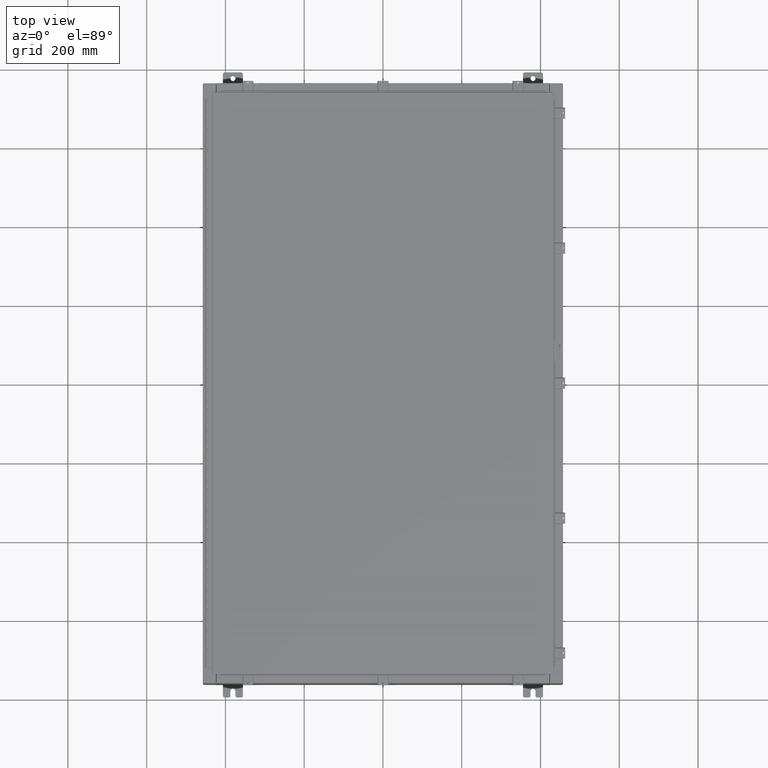
[diagram: clean part render]
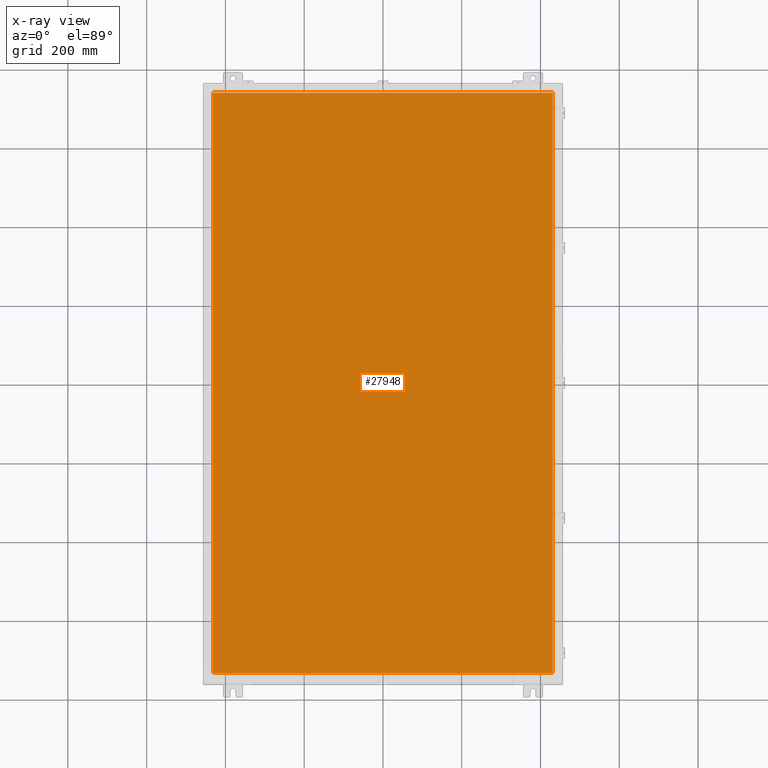
[diagram: x-ray — body ghosted, one internal face saturated and labeled with its STEP entity id]
A machine part, top view, then the same camera in x-ray: the body is ghosted and one INTERNAL B-rep face — a face not visible from any outside direction — is saturated and labeled: STEP entity #27948.
In plain terms, the highlighted planar face has unit normal (0, 0, -1).
Its self-contained STEP definition (entity closure, byte-faithful):
#8156 = LINE ( 'NONE', #57761, #57946 ) ;
#9603 = VERTEX_POINT ( 'NONE', #23980 ) ;
#12129 = CARTESIAN_POINT ( 'NONE',  ( -16.99029999999999400, 29.00630000000000000, -0.07470000000000000300 ) ) ;
#12171 = ORIENTED_EDGE ( 'NONE', *, *, #26365, .F. ) ;
#12830 = ORIENTED_EDGE ( 'NONE', *, *, #22200, .F. ) ;
#13421 = CARTESIAN_POINT ( 'NONE',  ( 16.99030000000000500, 29.00630000000000000, -0.07470000000000000300 ) ) ;
#13618 = EDGE_CURVE ( 'NONE', #56895, #26045, #57183, .T. ) ;
#15244 = ORIENTED_EDGE ( 'NONE', *, *, #13618, .F. ) ;
#17520 = VECTOR ( 'NONE', #27392, 39.37007874015748100 ) ;
#17899 = CARTESIAN_POINT ( 'NONE',  ( -16.99029999999999400, 29.00630000000000000, -0.07469999999999582500 ) ) ;
#19507 = VECTOR ( 'NONE', #43518, 39.37007874015748100 ) ;
#19676 = DIRECTION ( 'NONE',  ( 0.0000000000000000000, 0.0000000000000000000, -1.000000000000000000 ) ) ;
#21396 = CARTESIAN_POINT ( 'NONE',  ( 16.99030000000000500, 29.00630000000000300, -0.07469999999999804600 ) ) ;
#21636 = VERTEX_POINT ( 'NONE', #13421 ) ;
#22200 = EDGE_CURVE ( 'NONE', #9603, #21636, #32717, .T. ) ;
#23232 = EDGE_CURVE ( 'NONE', #21636, #56895, #29456, .T. ) ;
#23980 = CARTESIAN_POINT ( 'NONE',  ( 16.99030000000000500, -29.00630000000000000, -0.07470000000000000300 ) ) ;
#26045 = VERTEX_POINT ( 'NONE', #49812 ) ;
#26365 = EDGE_CURVE ( 'NONE', #26045, #9603, #8156, .T. ) ;
#27392 = DIRECTION ( 'NONE',  ( 0.0000000000000000000, -1.000000000000000000, 0.0000000000000000000 ) ) ;
#27948 = ADVANCED_FACE ( 'NONE', ( #55841 ), #49247, .T. ) ;
#29456 = LINE ( 'NONE', #21396, #54399 ) ;
#32717 = LINE ( 'NONE', #61410, #19507 ) ;
#36051 = DIRECTION ( 'NONE',  ( -1.000000000000000000, -0.0000000000000000000, -0.0000000000000000000 ) ) ;
#40156 = EDGE_LOOP ( 'NONE', ( #12830, #12171, #15244, #45884 ) ) ;
#43518 = DIRECTION ( 'NONE',  ( 0.0000000000000000000, 1.000000000000000000, 0.0000000000000000000 ) ) ;
#45884 = ORIENTED_EDGE ( 'NONE', *, *, #23232, .F. ) ;
#47020 = DIRECTION ( 'NONE',  ( 1.000000000000000000, -0.0000000000000000000, -0.0000000000000000000 ) ) ;
#49247 = PLANE ( 'NONE',  #54125 ) ;
#49467 = CARTESIAN_POINT ( 'NONE',  ( 0.0000000000000000000, 0.0000000000000000000, -0.07470000000000000300 ) ) ;
#49812 = CARTESIAN_POINT ( 'NONE',  ( -16.99029999999999800, -29.00630000000000000, -0.07470000000000000300 ) ) ;
#54125 = AXIS2_PLACEMENT_3D ( 'NONE', #49467, #19676, #54484 ) ;
#54399 = VECTOR ( 'NONE', #36051, 39.37007874015748100 ) ;
#54484 = DIRECTION ( 'NONE',  ( -1.000000000000000000, 0.0000000000000000000, -0.0000000000000000000 ) ) ;
#55841 = FACE_OUTER_BOUND ( 'NONE', #40156, .T. ) ;
#56895 = VERTEX_POINT ( 'NONE', #12129 ) ;
#57183 = LINE ( 'NONE', #17899, #17520 ) ;
#57761 = CARTESIAN_POINT ( 'NONE',  ( -16.99029999999999800, -29.00630000000000300, -0.07469999999999804600 ) ) ;
#57946 = VECTOR ( 'NONE', #47020, 39.37007874015748100 ) ;
#61410 = CARTESIAN_POINT ( 'NONE',  ( 16.99030000000000500, -29.00630000000000000, -0.07470000000000019700 ) ) ;